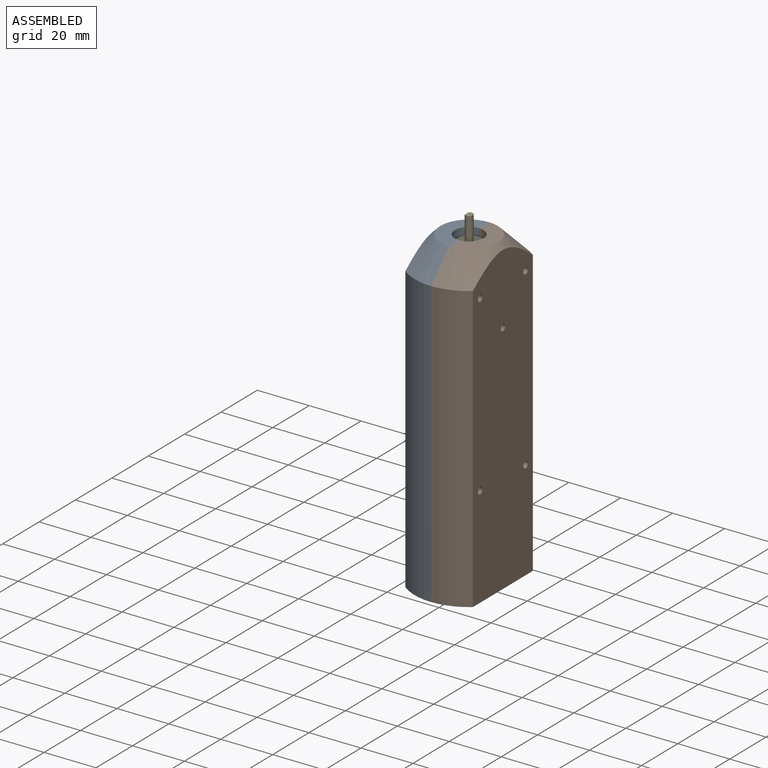
[diagram: assembled view]
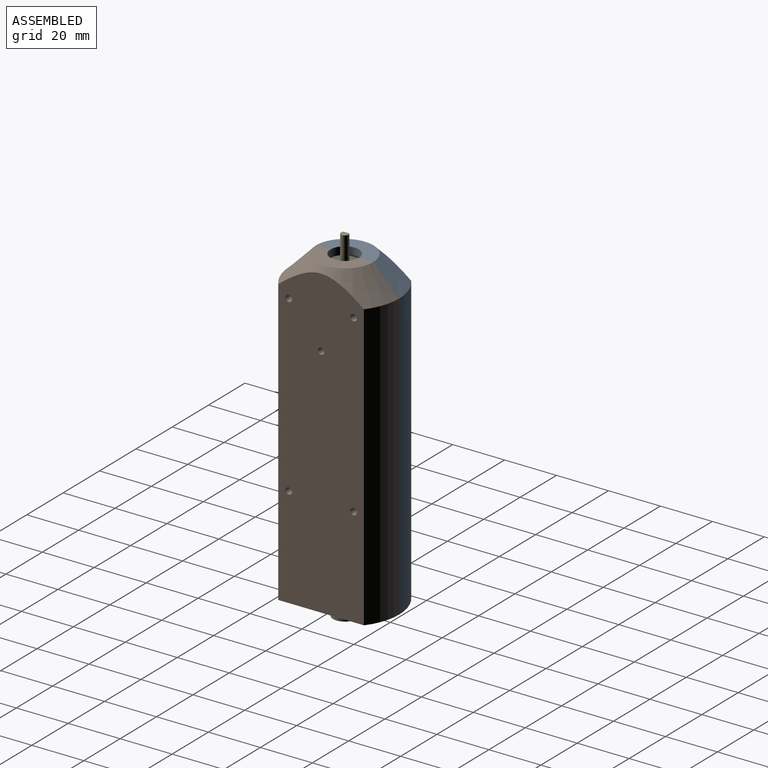
[diagram: assembled view, second angle]
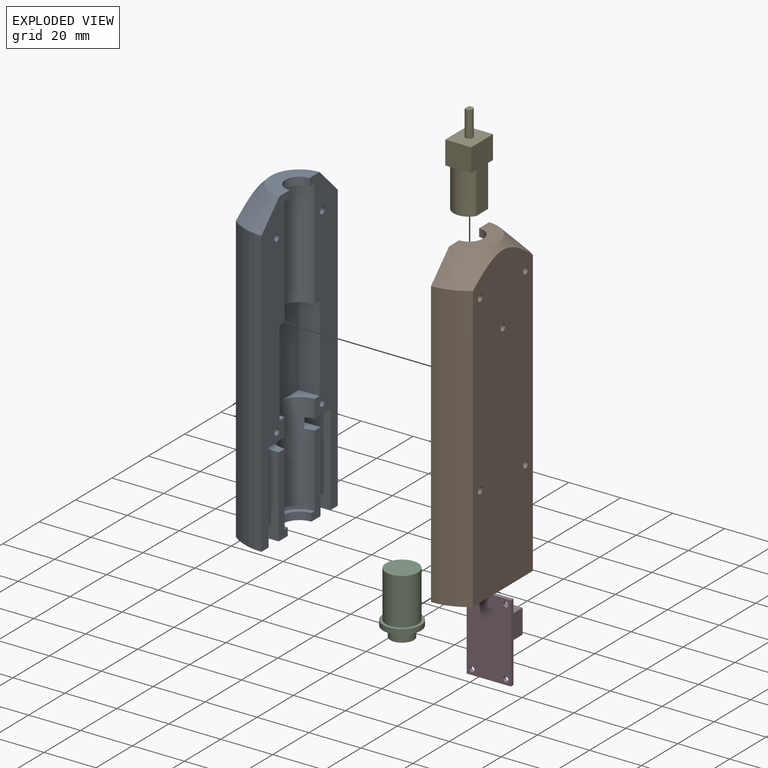
[diagram: exploded view]
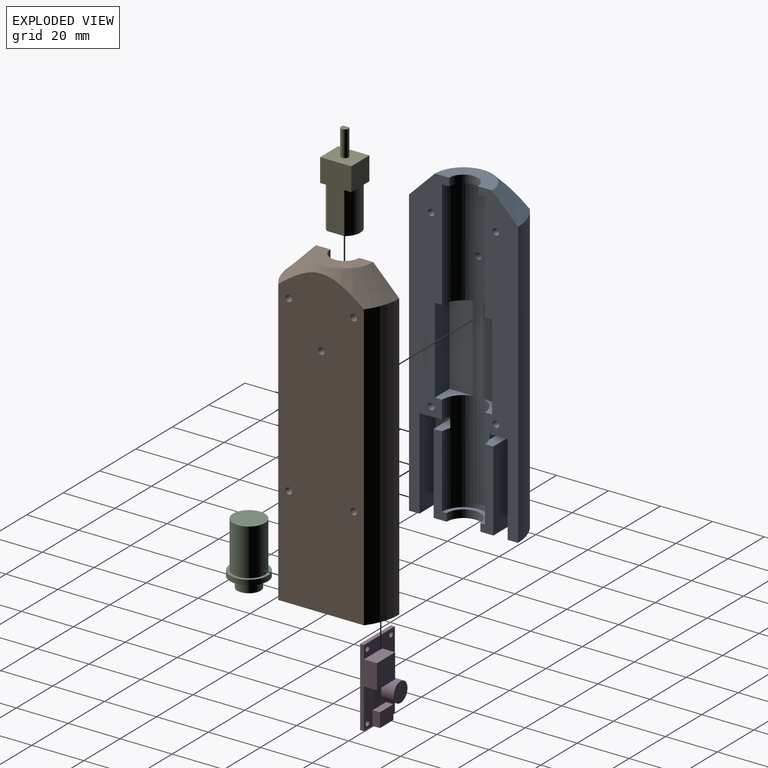
[diagram: exploded view, second angle]
ASSEMBLY  parts=5 mates=4
PART A: 40 faces, bbox 21x42x120 mm
  f0: cylinder r=8.25mm len=114mm, axis (0,0,-1), area 2200.5mm2, adj f1,f2,f6,f8,f10,f12,f13,f14
  f1: plane 31x5mm, normal (1,0,0), area 106mm2, adj f0,f3,f20,f21,f29,f32
  f2: plane 120x15.5mm, normal (1,0,0), area 1081.4mm2, adj f0,f3,f5,f7,f9,f10,f13,f14
  f3: plane 42x13mm, normal (0,0,-1), area 343.4mm2, adj f1,f2,f4,f6,f8,f9,f11,f20
  f4: cylinder r=21mm len=110mm, axis (0,0,-1), area 1542mm2, adj f3,f6,f11,f39
  f5: plane 22x11mm, normal (0,0,1), area 142.5mm2, adj f2,f6,f7,f39
  f6: plane 120x15.5mm, normal (1,0,0), area 1081.4mm2, adj f0,f3,f4,f5,f7,f10,f16,f17
  f7: cylinder r=5.5mm len=11mm, axis (0,0,1), area 51.8mm2, adj f2,f5,f6,f10
  f8: plane 31x5mm, normal (1,0,0), area 106mm2, adj f0,f3,f20,f21,f23,f25
  f9: cylinder r=21mm len=110mm, axis (0,0,-1), area 1542mm2, adj f2,f3,f11,f39
  f10: plane 16.5x8.25mm, normal (0,0,-1), area 59.4mm2, adj f0,f2,f6,f7
  f11: plane 118.01x32.99mm, normal (-1,0,0), area 3771.1mm2, adj f3,f4,f9,f34,f35,f36,f37,f38
  f12: plane 33x8.98mm, normal (1,0,0), area 296.5mm2, adj f0,f13,f14,f15
  f13: plane 8.98x8mm, normal (0,0,1), area 34.9mm2, adj f0,f2,f12,f15
  f14: plane 8.98x8mm, normal (0,0,-1), area 34.9mm2, adj f0,f2,f12,f15
  f15: plane 33x8mm, normal (0,-1,0), area 264mm2, adj f2,f12,f13,f14
  f16: plane 8.98x8mm, normal (0,0,-1), area 34.9mm2, adj f0,f6,f18,f19
  f17: plane 8.98x8mm, normal (0,0,1), area 34.9mm2, adj f0,f6,f18,f19
  f18: plane 33x8.98mm, normal (1,0,0), area 296.5mm2, adj f0,f16,f17,f19
  f19: plane 33x8mm, normal (0,1,0), area 264mm2, adj f6,f16,f17,f18
  f20: cylinder r=6.5mm len=13mm, axis (0,0,-1), area 61.3mm2, adj f1,f3,f8,f21
  f21: plane 16.5x8.25mm, normal (0,0,1), area 40.5mm2, adj f0,f1,f8,f20
  f22: plane 5.56x4mm, normal (0,1,0), area 22.3mm2, adj f0,f23,f24,f27
  f23: plane 9x4mm, normal (0,0,1), area 34.3mm2, adj f0,f8,f22,f25,f27
  f24: plane 9.5x9mm, normal (0,0,-1), area 83.8mm2, adj f0,f2,f22,f26,f27
  f25: plane 31x9mm, normal (0,1,0), area 279mm2, adj f3,f8,f23,f27
  f26: plane 35x9mm, normal (0,-1,0), area 315mm2, adj f2,f3,f24,f27
  f27: plane 35x9.5mm, normal (1,0,0), area 208.5mm2, adj f3,f22,f23,f24,f25,f26
  f28: plane 5.56x4mm, normal (0,-1,0), area 22.3mm2, adj f0,f29,f30,f33
  f29: plane 9x4mm, normal (0,0,1), area 34.3mm2, adj f0,f1,f28,f32,f33
  f30: plane 9.5x9mm, normal (0,0,-1), area 83.8mm2, adj f0,f6,f28,f31,f33
  f31: plane 35x9mm, normal (0,1,0), area 315mm2, adj f3,f6,f30,f33
  f32: plane 31x9mm, normal (0,-1,0), area 279mm2, adj f1,f3,f29,f33
  f33: plane 35x9.5mm, normal (1,0,0), area 208.5mm2, adj f3,f28,f29,f30,f31,f32
  f34: cylinder r=1.25mm len=13mm, axis (1,0,0), area 102.1mm2, adj f6,f11
  f35: cylinder r=1.25mm len=13mm, axis (1,0,0), area 102.1mm2, adj f2,f11
  f36: cylinder r=1.25mm len=13mm, axis (1,0,0), area 102.1mm2, adj f2,f11
  f37: cylinder r=1.25mm len=13mm, axis (1,0,0), area 102.1mm2, adj f6,f11
  f38: cylinder r=1.25mm len=4.85mm, axis (-1,0,0), area 38.1mm2, adj f0,f11
  f39: cone r=11mm half-angle=45deg, axis (0,0,-1), area 450.7mm2, adj f2,f4,f5,f6,f9,f11
PART B: same geometry as A
PART C: 7 faces, bbox 14.5x14.5x24 mm
  f0: cylinder r=7.25mm len=14.5mm, axis (0,0,-1), area 91.1mm2, adj f1,f2
  f1: plane 14.5x14.5mm, normal (0,0,1), area 101.5mm2, adj f0,f3
  f2: plane 14.5x14.5mm, normal (0,0,-1), area 46.3mm2, adj f0,f5
  f3: cylinder r=4.5mm len=9mm, axis (0,0,-1), area 113.1mm2, adj f1,f4
  f4: plane 9x9mm, normal (0,0,1), area 63.6mm2, adj f3
  f5: cylinder r=6.15mm len=18mm, axis (0,0,1), area 695.5mm2, adj f2,f6
  f6: plane 12.3x12.3mm, normal (0,0,-1), area 118.8mm2, adj f5
PART D: 20 faces, bbox 17x30x6.5 mm
  f0: plane 30x17mm, normal (0,0,1), area 317.4mm2, adj f1,f2,f3,f4,f6,f7,f8,f9
  f1: plane 17x1.5mm, normal (0,1,0), area 25.5mm2, adj f0,f2,f4,f5
  f2: plane 30x6.5mm, normal (-1,0,0), area 92mm2, adj f0,f1,f3,f5,f10,f11,f13
  f3: plane 17x4.3mm, normal (0,-1,0), area 46.2mm2, adj f0,f2,f4,f5,f14,f16,f17
  f4: plane 30x1.5mm, normal (1,0,0), area 45mm2, adj f0,f1,f3,f5
  f5: plane 30x17mm, normal (0,0,-1), area 497.4mm2, adj f1,f2,f3,f4,f6,f7,f8,f9
  f6: cylinder r=1mm len=2mm, axis (0,0,1), area 9.4mm2, adj f0,f5
  f7: cylinder r=1mm len=2mm, axis (0,0,1), area 9.4mm2, adj f0,f5
  f8: cylinder r=1mm len=2mm, axis (0,0,1), area 9.4mm2, adj f0,f5
  f9: cylinder r=1mm len=2mm, axis (0,0,1), area 9.4mm2, adj f0,f5
  f10: plane 10x5mm, normal (0,1,0), area 50mm2, adj f0,f2,f12,f13
  f11: plane 10x5mm, normal (0,-1,0), area 50mm2, adj f0,f2,f12,f13
  f12: plane 9.4x5mm, normal (1,0,0), area 47mm2, adj f0,f10,f11,f13
  f13: plane 10x9.4mm, normal (0,0,1), area 94mm2, adj f2,f10,f11,f12
  f14: plane 5.5x2.8mm, normal (1,0,0), area 15.4mm2, adj f0,f3,f15,f17
  f15: plane 7.4x2.8mm, normal (0,1,0), area 20.7mm2, adj f0,f14,f16,f17
  f16: plane 5.5x2.8mm, normal (-1,0,0), area 15.4mm2, adj f0,f3,f15,f17
  f17: plane 7.4x5.5mm, normal (0,0,1), area 40.7mm2, adj f3,f14,f15,f16
  f18: cylinder r=3.8mm len=7.6mm, axis (0,0,-1), area 119.4mm2, adj f0,f19
  f19: plane 7.6x7.6mm, normal (0,0,1), area 45.4mm2, adj f18
PART E: 15 faces, bbox 35x12x10 mm
  f0: plane 25x12mm, normal (0,0,1), area 214.1mm2, adj f1,f3,f4,f5,f8,f9,f10,f11
  f1: cylinder r=6mm len=16mm, axis (-1,0,0), area 189.1mm2, adj f0,f2,f4,f5,f6
  f2: plane 25x12mm, normal (0,0,-1), area 214.1mm2, adj f1,f3,f4,f6,f7,f9,f10,f11
  f3: cylinder r=6mm len=16mm, axis (-1,0,0), area 189.1mm2, adj f0,f2,f4,f7,f8
  f4: plane 12x10mm, normal (-1,0,0), area 104.1mm2, adj f0,f1,f2,f3
  f5: plane 5x2.68mm, normal (-1,0,0), area 4mm2, adj f0,f1,f10
  f6: plane 5x2.68mm, normal (-1,0,0), area 4mm2, adj f1,f2,f10
  f7: plane 5x2.68mm, normal (-1,0,0), area 4mm2, adj f2,f3,f9
  f8: plane 5x2.68mm, normal (-1,0,0), area 4mm2, adj f0,f3,f9
  f9: plane 10x9mm, normal (0,1,0), area 90mm2, adj f0,f2,f7,f8,f11
  f10: plane 10x9mm, normal (0,-1,0), area 90mm2, adj f0,f2,f5,f6,f11
  f11: plane 12x10mm, normal (1,0,0), area 114.2mm2, adj f0,f2,f9,f10,f12,f13
  f12: plane 10x2.19mm, normal (0,0,1), area 21.9mm2, adj f11,f13,f14
  f13: cylinder r=1.45mm len=10mm, axis (-1,0,0), area 66.3mm2, adj f11,f12,f14
  f14: plane 2.9x2.4mm, normal (1,0,0), area 5.8mm2, adj f12,f13
PLACE A t=(-36.53,0.53,-9.94)mm
PLACE B rot(axis=(0,0,1),180deg) t=(-29.37,18.35,-9.94)mm
PLACE C rot(axis=(1,0,0),180deg) t=(-29.11,18.82,-9.94)mm
PLACE D rot(axis=(0,0.71,0.71),180deg) t=(-35.04,20.94,21.14)mm
PLACE E rot(axis=(0,-1,0),90deg) t=(-32.04,-4.55,82.06)mm
MATE fastened C.f0 <-> A.f0  axis (0,0,1) through (-32.95,9.44,-9.94)mm
MATE fastened D.f5 <-> A.f25  axis (0,-1,0) through (-41.95,20.94,-9.94)mm
MATE fastened B.f6 <-> A.f2  axis (-1,0,0) through (-32.95,30.44,-9.94)mm
MATE fastened E.f13 <-> A.f0  axis (0,0,-1) through (-32.95,9.44,107.06)mm
